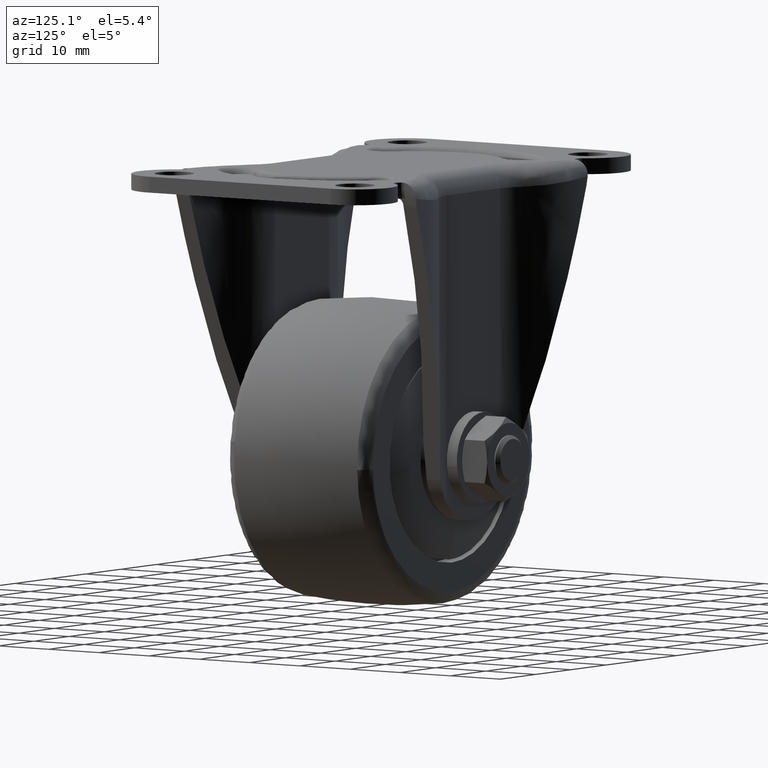
[diagram: clean part render]
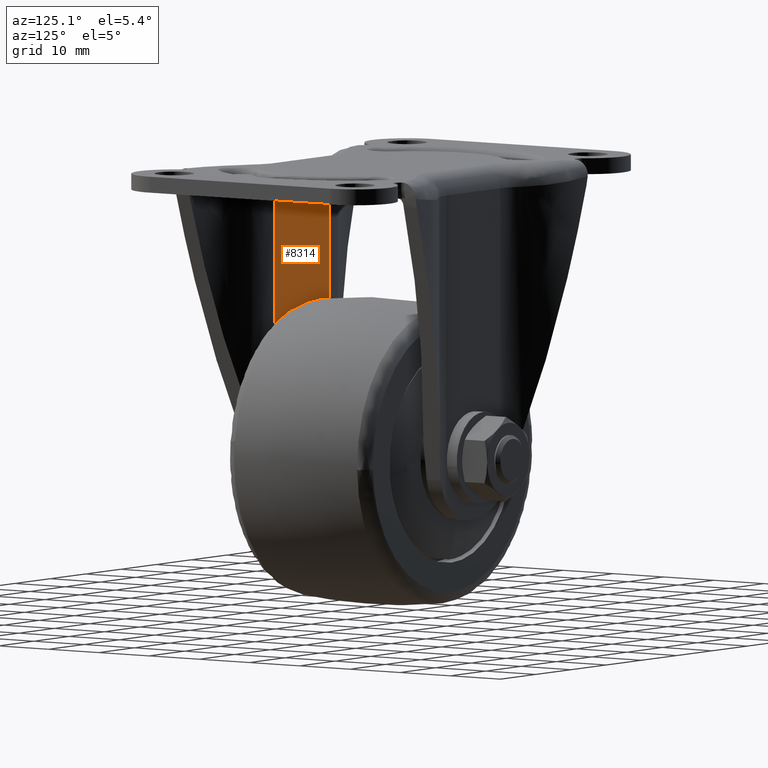
[diagram: same view with one face highlighted and labeled with its STEP entity id]
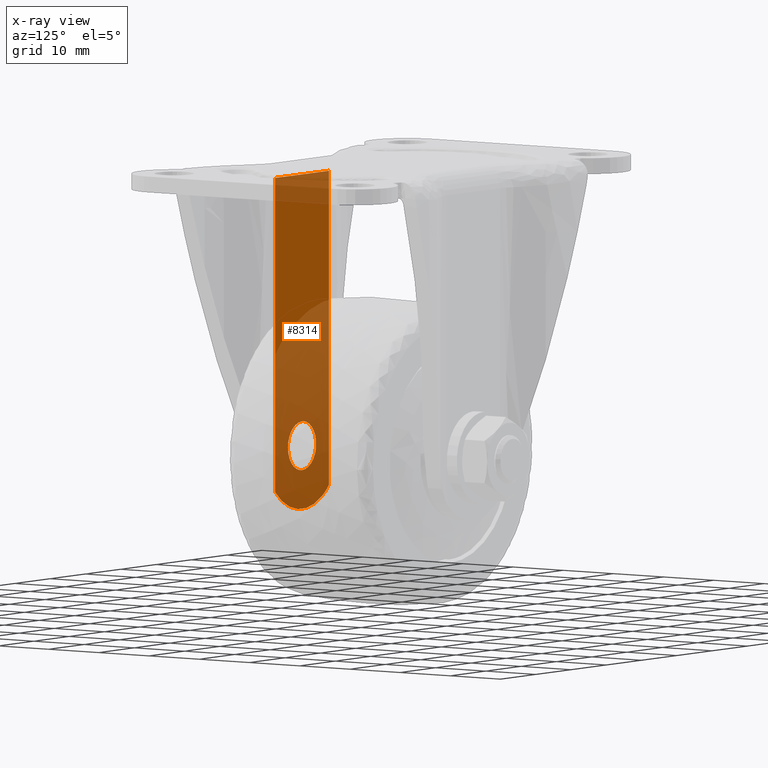
[diagram: x-ray of the same camera — body ghosted, the highlighted face saturated]
A machine part, auxiliary view. The second image highlights one B-rep face of the part: STEP entity #8314.
The next image is the same camera in x-ray: the body ghosted, the highlighted face saturated — about 62% of this face is hidden behind the body in this view.
In plain terms, the highlighted face is a freeform B-spline surface patch.
Its self-contained STEP definition (entity closure, byte-faithful):
#3123=CARTESIAN_POINT('',(3.999847692254630,-15.750000000000000,-46.965093857748073));
#3124=VERTEX_POINT('',#3123);
#3130=CARTESIAN_POINT('',(0.0,-15.750000000000000,-51.000000000000199));
#3131=VERTEX_POINT('',#3130);
#3132=CARTESIAN_POINT('',(3.999847692254630,-15.750000000000000,-46.965093857748066));
#3133=CARTESIAN_POINT('',(4.000000000000201,-15.750000000000000,-46.982546596458761));
#3134=CARTESIAN_POINT('',(4.000000000000201,-15.750000000000000,-47.0));
#3135=CARTESIAN_POINT('',(4.000000000000201,-15.749999999999995,-51.000000000000192));
#3136=CARTESIAN_POINT('',(0.0,-15.750000000000000,-51.000000000000199));
#3144=(BOUNDED_CURVE()B_SPLINE_CURVE(2,(#3132,#3133,#3134,#3135,#3136),.UNSPECIFIED.,.F.,.U.)B_SPLINE_CURVE_WITH_KNOTS((3,2,3),(0.248460105642252,0.250000000000000,0.500000000000000),.UNSPECIFIED.)CURVE()GEOMETRIC_REPRESENTATION_ITEM()RATIONAL_B_SPLINE_CURVE((0.996414028047732,0.998195901539707,1.0,0.707106781186547,1.0))REPRESENTATION_ITEM(''));
#3145=EDGE_CURVE('',#3124,#3131,#3144,.T.);
#3147=CARTESIAN_POINT('',(-3.969064855290866,-15.750000000000000,-47.496512008411173));
#3148=VERTEX_POINT('',#3147);
#3149=CARTESIAN_POINT('',(0.0,-15.750000000000000,-51.000000000000199));
#3150=CARTESIAN_POINT('',(-3.530794400436446,-15.750000000000000,-51.000000000000206));
#3151=CARTESIAN_POINT('',(-3.969064855290865,-15.750000000000004,-47.496512008411180));
#3159=(BOUNDED_CURVE()B_SPLINE_CURVE(2,(#3149,#3150,#3151),.UNSPECIFIED.,.F.,.U.)B_SPLINE_CURVE_WITH_KNOTS((3,3),(0.500000000000000,0.728526071021495),.UNSPECIFIED.)CURVE()GEOMETRIC_REPRESENTATION_ITEM()RATIONAL_B_SPLINE_CURVE((1.0,0.732265053902890,0.954005430259575))REPRESENTATION_ITEM(''));
#3160=EDGE_CURVE('',#3131,#3148,#3159,.T.);
#3210=CARTESIAN_POINT('',(0.0,-15.750000000000000,-42.999999999999801));
#3211=VERTEX_POINT('',#3210);
#3212=CARTESIAN_POINT('',(-3.969064855290866,-15.750000000000000,-47.496512008411173));
#3213=CARTESIAN_POINT('',(-4.000000000000202,-15.750000000000000,-47.249219710226889));
#3214=CARTESIAN_POINT('',(-4.000000000000201,-15.750000000000000,-47.0));
#3215=CARTESIAN_POINT('',(-4.000000000000201,-15.749999999999995,-42.999999999999801));
#3216=CARTESIAN_POINT('',(0.0,-15.750000000000000,-42.999999999999801));
#3224=(BOUNDED_CURVE()B_SPLINE_CURVE(2,(#3212,#3213,#3214,#3215,#3216),.UNSPECIFIED.,.F.,.U.)B_SPLINE_CURVE_WITH_KNOTS((3,2,3),(0.728526071021495,0.750000000000000,1.0),.UNSPECIFIED.)CURVE()GEOMETRIC_REPRESENTATION_ITEM()RATIONAL_B_SPLINE_CURVE((0.954005430259574,0.974841727283656,1.0,0.707106781186547,1.0))REPRESENTATION_ITEM(''));
#3225=EDGE_CURVE('',#3148,#3211,#3224,.T.);
#3227=CARTESIAN_POINT('',(0.0,-15.750000000000000,-42.999999999999801));
#3228=CARTESIAN_POINT('',(3.965244841867722,-15.749999999999996,-42.999999999999801));
#3229=CARTESIAN_POINT('',(3.999847692254630,-15.750000000000000,-46.965093857748066));
#3237=(BOUNDED_CURVE()B_SPLINE_CURVE(2,(#3227,#3228,#3229),.UNSPECIFIED.,.F.,.U.)B_SPLINE_CURVE_WITH_KNOTS((3,3),(0.0,0.248460105642252),.UNSPECIFIED.)CURVE()GEOMETRIC_REPRESENTATION_ITEM()RATIONAL_B_SPLINE_CURVE((1.0,0.708910879646841,0.996414028047732))REPRESENTATION_ITEM(''));
#3238=EDGE_CURVE('',#3211,#3124,#3237,.T.);
#6621=CARTESIAN_POINT('',(7.624870356053581,-15.750000000000000,-53.998845639966497));
#6622=VERTEX_POINT('',#6621);
#6711=CARTESIAN_POINT('',(-7.624870356053570,-15.750000000000000,-53.998845639966497));
#6712=VERTEX_POINT('',#6711);
#6730=CARTESIAN_POINT('',(7.624870356053568,-15.750000000000000,-53.998845639966490));
#6731=CARTESIAN_POINT('',(4.548856217918137,-15.750000000000005,-57.349999159768792));
#6732=CARTESIAN_POINT('',(2.146554E-015,-15.750000000000000,-57.349999159768799));
#6733=CARTESIAN_POINT('',(-4.548856217918130,-15.750000000000005,-57.349999159768792));
#6734=CARTESIAN_POINT('',(-7.624870356053560,-15.750000000000000,-53.998845639966497));
#6742=(BOUNDED_CURVE()B_SPLINE_CURVE(2,(#6730,#6731,#6732,#6733,#6734),.UNSPECIFIED.,.F.,.U.)B_SPLINE_CURVE_WITH_KNOTS((3,2,3),(0.0,0.500000000000000,1.0),.UNSPECIFIED.)CURVE()GEOMETRIC_REPRESENTATION_ITEM()RATIONAL_B_SPLINE_CURVE((1.0,0.915482673573572,1.0,0.915482673573572,1.0))REPRESENTATION_ITEM(''));
#6743=EDGE_CURVE('',#6622,#6712,#6742,.T.);
#7527=CARTESIAN_POINT('',(-7.624870356053590,-15.750000000000000,-2.600000000000160));
#7528=VERTEX_POINT('',#7527);
#7542=CARTESIAN_POINT('',(-7.624870356053570,-15.750000000000000,-53.998845639966497));
#7543=CARTESIAN_POINT('',(-7.624870356053590,-15.750000000000000,-2.600000000000160));
#7544=QUASI_UNIFORM_CURVE('',1,(#7542,#7543),.UNSPECIFIED.,.F.,.U.);
#7545=EDGE_CURVE('',#6712,#7528,#7544,.T.);
#7571=CARTESIAN_POINT('',(7.624870356053581,-15.750000000000000,-2.600000000000160));
#7572=VERTEX_POINT('',#7571);
#7573=CARTESIAN_POINT('',(7.624870356053581,-15.750000000000000,-53.998845639966497));
#7574=CARTESIAN_POINT('',(7.624870356053581,-15.750000000000000,-2.600000000000160));
#7575=QUASI_UNIFORM_CURVE('',1,(#7573,#7574),.UNSPECIFIED.,.F.,.U.);
#7576=EDGE_CURVE('',#6622,#7572,#7575,.T.);
#8293=CARTESIAN_POINT('',(-8.386594875066386,-15.750000000000000,-60.084760997729283));
#8294=CARTESIAN_POINT('',(-8.386594875066386,-15.750000000000000,0.134763795972894));
#8295=CARTESIAN_POINT('',(8.386595284096295,-15.750000000000000,-60.084760997729283));
#8296=CARTESIAN_POINT('',(8.386595284096295,-15.750000000000000,0.134763795972894));
#8297=B_SPLINE_SURFACE_WITH_KNOTS('',1,1,((#8293,#8295),(#8294,#8296)),.UNSPECIFIED.,.F.,.F.,.U.,(2,2),(2,2),(0.0,60.219524793702178),(0.0,16.773190159162681),.UNSPECIFIED.);
#8298=ORIENTED_EDGE('',*,*,#7576,.F.);
#8299=ORIENTED_EDGE('',*,*,#6743,.T.);
#8300=ORIENTED_EDGE('',*,*,#7545,.T.);
#8301=CARTESIAN_POINT('',(7.624870356053581,-15.750000000000000,-2.600000000000160));
#8302=CARTESIAN_POINT('',(-7.624870356053590,-15.750000000000000,-2.600000000000160));
#8303=QUASI_UNIFORM_CURVE('',1,(#8301,#8302),.UNSPECIFIED.,.F.,.U.);
#8304=EDGE_CURVE('',#7572,#7528,#8303,.T.);
#8305=ORIENTED_EDGE('',*,*,#8304,.F.);
#8306=EDGE_LOOP('',(#8298,#8299,#8300,#8305));
#8307=FACE_OUTER_BOUND('',#8306,.T.);
#8308=ORIENTED_EDGE('',*,*,#3238,.F.);
#8309=ORIENTED_EDGE('',*,*,#3225,.F.);
#8310=ORIENTED_EDGE('',*,*,#3160,.F.);
#8311=ORIENTED_EDGE('',*,*,#3145,.F.);
#8312=EDGE_LOOP('',(#8308,#8309,#8310,#8311));
#8313=FACE_BOUND('',#8312,.T.);
#8314=ADVANCED_FACE('',(#8307,#8313),#8297,.T.);